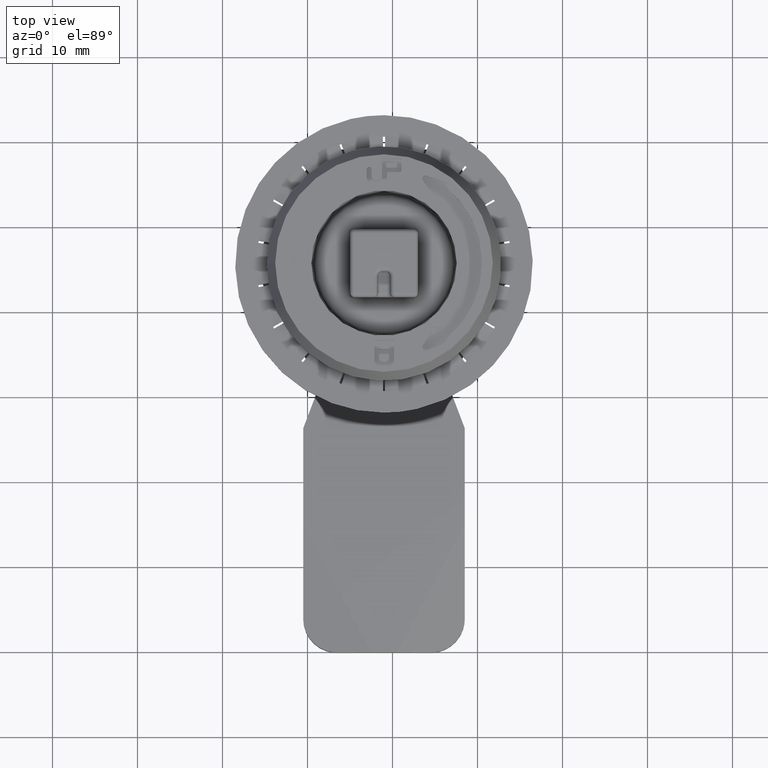
[diagram: clean part render]
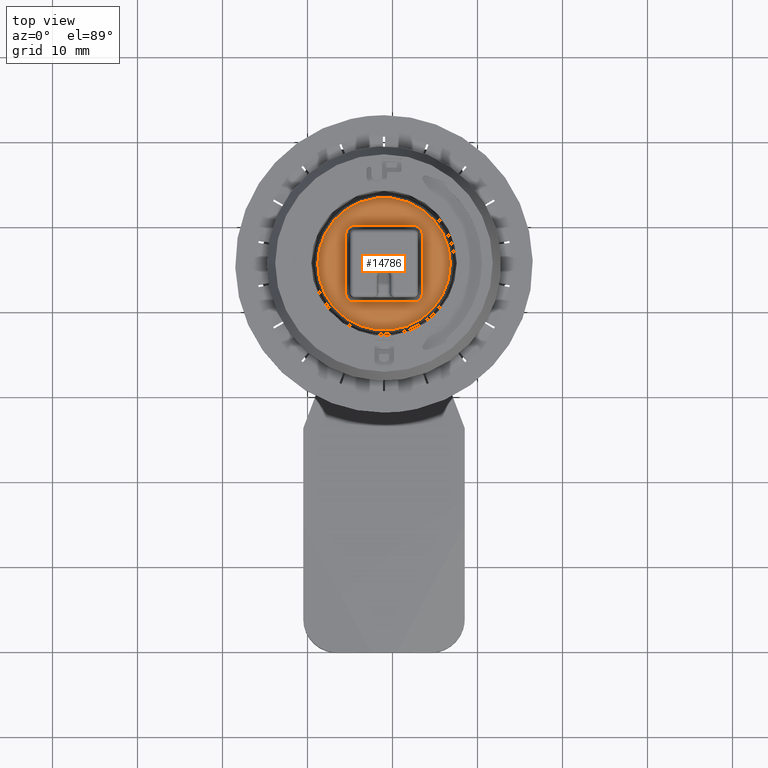
[diagram: same view with one face highlighted and labeled with its STEP entity id]
A machine part, top view. The second image highlights one B-rep face of the part: STEP entity #14786.
In plain terms, the highlighted planar face has unit normal (0, 0, 1).
Its self-contained STEP definition (entity closure, byte-faithful):
#255=PLANE('',#15739);
#657=CIRCLE('',#15740,7.8);
#658=CIRCLE('',#15741,1.);
#659=CIRCLE('',#15742,1.);
#660=CIRCLE('',#15743,1.);
#661=CIRCLE('',#15744,1.);
#1113=FACE_BOUND('',#2294,.T.);
#1441=FACE_OUTER_BOUND('',#2293,.T.);
#2293=EDGE_LOOP('',(#12061));
#2294=EDGE_LOOP('',(#12062,#12063,#12064,#12065,#12066,#12067,#12068,#12069));
#4337=LINE('',#40067,#5372);
#4338=LINE('',#40071,#5373);
#4339=LINE('',#40075,#5374);
#4340=LINE('',#40078,#5375);
#5372=VECTOR('',#17897,6.99999999999999);
#5373=VECTOR('',#17900,6.99999999999999);
#5374=VECTOR('',#17903,6.99999999999999);
#5375=VECTOR('',#17906,6.99999999999999);
#6878=VERTEX_POINT('',#40061);
#6879=VERTEX_POINT('',#40063);
#6880=VERTEX_POINT('',#40064);
#6881=VERTEX_POINT('',#40066);
#6882=VERTEX_POINT('',#40068);
#6883=VERTEX_POINT('',#40070);
#6884=VERTEX_POINT('',#40072);
#6885=VERTEX_POINT('',#40074);
#6886=VERTEX_POINT('',#40076);
#8766=EDGE_CURVE('',#6878,#6878,#657,.T.);
#8767=EDGE_CURVE('',#6879,#6880,#658,.T.);
#8768=EDGE_CURVE('',#6880,#6881,#4337,.T.);
#8769=EDGE_CURVE('',#6881,#6882,#659,.T.);
#8770=EDGE_CURVE('',#6882,#6883,#4338,.T.);
#8771=EDGE_CURVE('',#6883,#6884,#660,.T.);
#8772=EDGE_CURVE('',#6884,#6885,#4339,.T.);
#8773=EDGE_CURVE('',#6885,#6886,#661,.T.);
#8774=EDGE_CURVE('',#6886,#6879,#4340,.T.);
#12061=ORIENTED_EDGE('',*,*,#8766,.T.);
#12062=ORIENTED_EDGE('',*,*,#8767,.T.);
#12063=ORIENTED_EDGE('',*,*,#8768,.T.);
#12064=ORIENTED_EDGE('',*,*,#8769,.T.);
#12065=ORIENTED_EDGE('',*,*,#8770,.T.);
#12066=ORIENTED_EDGE('',*,*,#8771,.T.);
#12067=ORIENTED_EDGE('',*,*,#8772,.T.);
#12068=ORIENTED_EDGE('',*,*,#8773,.T.);
#12069=ORIENTED_EDGE('',*,*,#8774,.T.);
#14786=ADVANCED_FACE('',(#1441,#1113),#255,.T.);
#15739=AXIS2_PLACEMENT_3D('',#40060,#17891,#17892);
#15740=AXIS2_PLACEMENT_3D('',#40062,#17893,#17894);
#15741=AXIS2_PLACEMENT_3D('',#40065,#17895,#17896);
#15742=AXIS2_PLACEMENT_3D('',#40069,#17898,#17899);
#15743=AXIS2_PLACEMENT_3D('',#40073,#17901,#17902);
#15744=AXIS2_PLACEMENT_3D('',#40077,#17904,#17905);
#17891=DIRECTION('center_axis',(0.,0.,1.));
#17892=DIRECTION('ref_axis',(0.,1.,0.));
#17893=DIRECTION('center_axis',(0.,0.,1.));
#17894=DIRECTION('ref_axis',(1.,0.,0.));
#17895=DIRECTION('center_axis',(0.,0.,-1.));
#17896=DIRECTION('ref_axis',(0.,-1.,0.));
#17897=DIRECTION('',(-1.,1.73472347597681E-15,0.));
#17898=DIRECTION('center_axis',(0.,0.,-1.));
#17899=DIRECTION('ref_axis',(0.,-1.,0.));
#17900=DIRECTION('',(0.,1.,0.));
#17901=DIRECTION('center_axis',(0.,0.,-1.));
#17902=DIRECTION('ref_axis',(0.,-1.,0.));
#17903=DIRECTION('',(1.,-1.73472347597681E-15,0.));
#17904=DIRECTION('center_axis',(0.,0.,-1.));
#17905=DIRECTION('ref_axis',(0.,-1.,0.));
#17906=DIRECTION('',(0.,-1.,0.));
#40060=CARTESIAN_POINT('Origin',(169.,205.,-6.10000000000001));
#40061=CARTESIAN_POINT('',(161.2,205.,-6.10000000000001));
#40062=CARTESIAN_POINT('Origin',(169.,205.,-6.10000000000001));
#40063=CARTESIAN_POINT('',(173.5,201.5,-6.10000000000001));
#40064=CARTESIAN_POINT('',(172.5,200.5,-6.10000000000001));
#40065=CARTESIAN_POINT('Origin',(172.5,201.5,-6.10000000000001));
#40066=CARTESIAN_POINT('',(165.5,200.5,-6.10000000000001));
#40067=CARTESIAN_POINT('',(169.,200.5,-6.10000000000001));
#40068=CARTESIAN_POINT('',(164.5,201.5,-6.10000000000001));
#40069=CARTESIAN_POINT('Origin',(165.5,201.5,-6.10000000000001));
#40070=CARTESIAN_POINT('',(164.5,208.5,-6.10000000000001));
#40071=CARTESIAN_POINT('',(164.5,205.,-6.10000000000001));
#40072=CARTESIAN_POINT('',(165.5,209.5,-6.10000000000001));
#40073=CARTESIAN_POINT('Origin',(165.5,208.5,-6.10000000000001));
#40074=CARTESIAN_POINT('',(172.5,209.5,-6.10000000000001));
#40075=CARTESIAN_POINT('',(169.,209.5,-6.10000000000001));
#40076=CARTESIAN_POINT('',(173.5,208.5,-6.10000000000001));
#40077=CARTESIAN_POINT('Origin',(172.5,208.5,-6.10000000000001));
#40078=CARTESIAN_POINT('',(173.5,205.,-6.10000000000001));